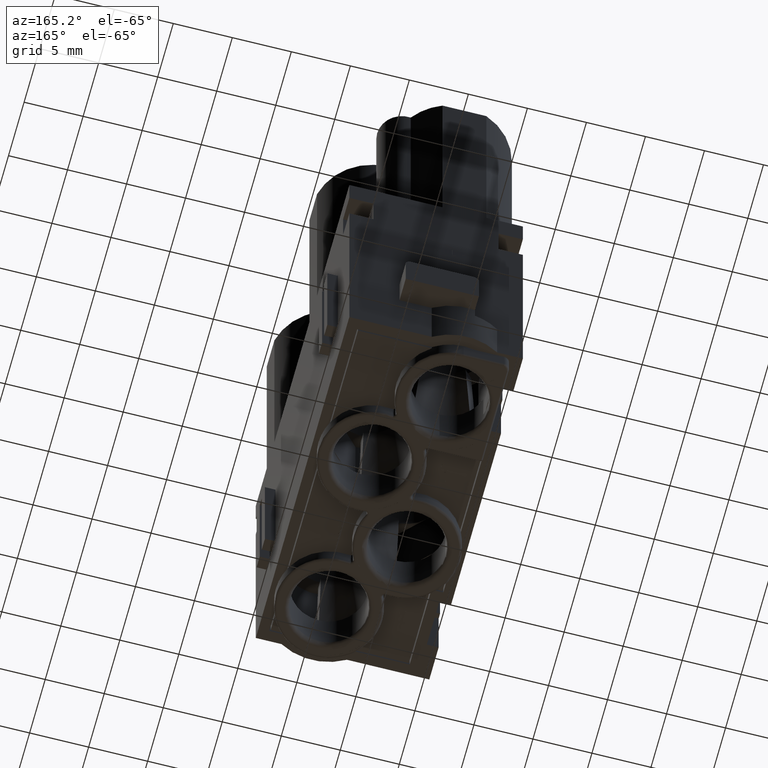
[diagram: clean part render]
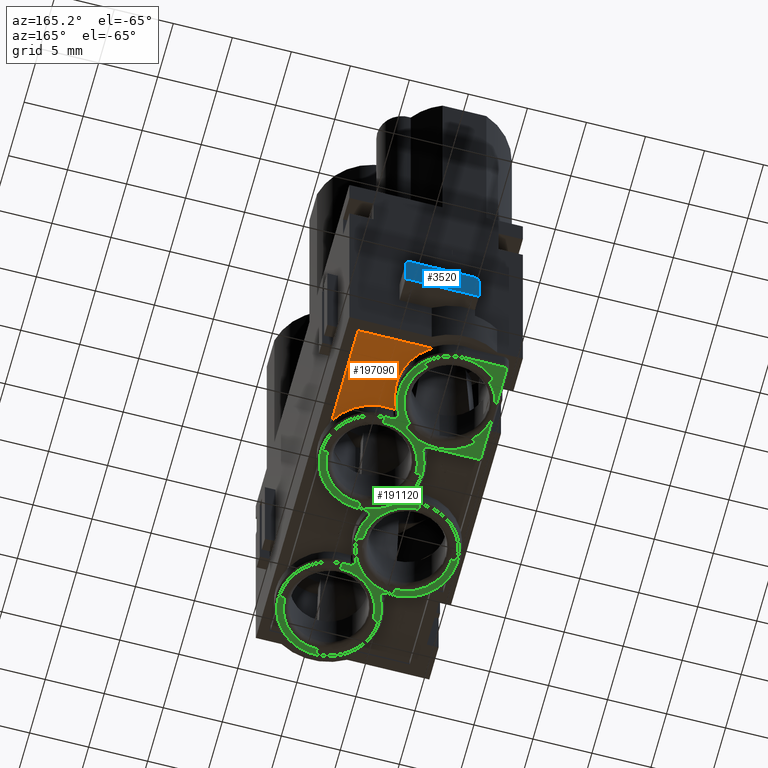
[diagram: same view with three faces highlighted in distinct colors, each labeled with its STEP entity id]
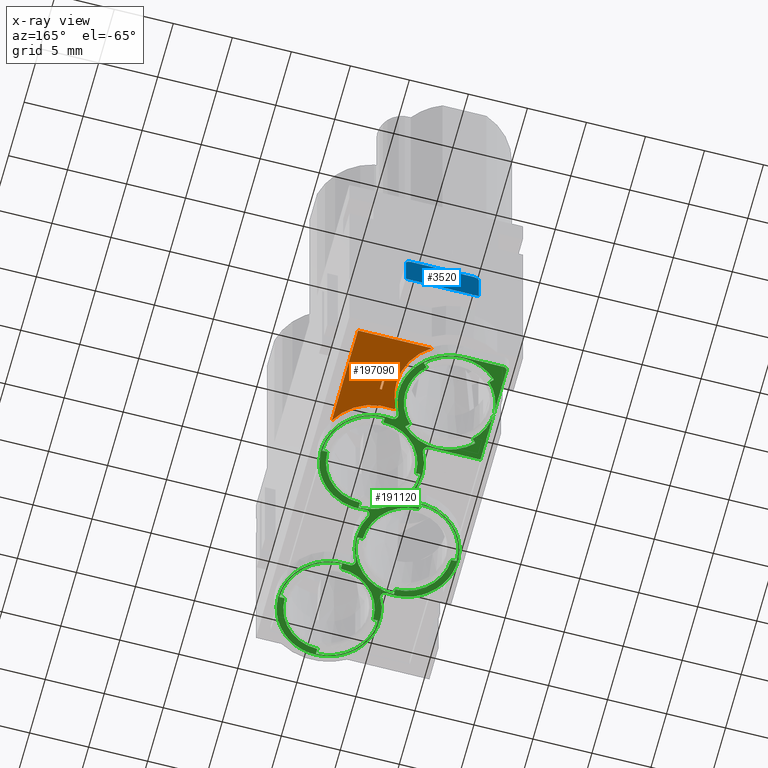
[diagram: x-ray of the same camera — body ghosted, the three highlighted faces saturated]
A machine part, auxiliary view with three faces highlighted in distinct colors.
The next image is the same camera in x-ray (body ghosted, the three faces saturated) — at least one of them is partly hidden behind the body in this view.
Their STEP definitions:

[orange] entity #197090 — the highlighted planar face has unit normal (0, 0, -1).
#170850=CARTESIAN_POINT('',(50.2867064694503,85.5571830001004,
-8.83281218930299));
#170860=CARTESIAN_POINT('',(50.2867064694503,85.2405163334003,
-8.83281218930299));
#170870=CARTESIAN_POINT('',(50.2867064694503,84.9238496667003,
-8.83281218930299));
#170880=CARTESIAN_POINT('',(50.2867064694503,84.2905163333003,
-8.83281218930299));
#170890=CARTESIAN_POINT('',(50.2867064694503,83.9738496666003,
-8.83281218930299));
#170900=CARTESIAN_POINT('',(50.2867064694503,83.6571829999003,
-8.83281218930299));
#170910=CARTESIAN_POINT('',(50.2009856411874,85.5571830001004,
-8.99698346697953));
#170920=CARTESIAN_POINT('',(50.2009856411874,85.2405163334004,
-8.99698346697953));
#170930=CARTESIAN_POINT('',(50.2009856411874,84.9238496667004,
-8.99698346697953));
#170940=CARTESIAN_POINT('',(50.2009856411874,84.2905163333004,
-8.99698346697953));
#170950=CARTESIAN_POINT('',(50.2009856411874,83.9738496666004,
-8.99698346697953));
#170960=CARTESIAN_POINT('',(50.2009856411874,83.6571829999004,
-8.99698346697953));
#170970=CARTESIAN_POINT('',(50.3074498237008,85.5571830001005,
-9.14852767390861));
#170980=CARTESIAN_POINT('',(50.3074498237008,85.2405163334004,
-9.14852767390861));
#170990=CARTESIAN_POINT('',(50.3074498237009,84.9238496667004,
-9.14852767390861));
#171000=CARTESIAN_POINT('',(50.3074498237009,84.2905163333004,
-9.14852767390861));
#171010=CARTESIAN_POINT('',(50.3074498237009,83.9738496666004,
-9.14852767390861));
#171020=CARTESIAN_POINT('',(50.3074498237009,83.6571829999004,
-9.14852767390861));
#171030=CARTESIAN_POINT('',(50.4909617885992,85.5571830001004,
-9.12355513797085));
#171040=CARTESIAN_POINT('',(50.4909617885992,85.2405163334003,
-9.12355513797085));
#171050=CARTESIAN_POINT('',(50.4909617885992,84.9238496667003,
-9.12355513797085));
#171060=CARTESIAN_POINT('',(50.4909617885992,84.2905163333003,
-9.12355513797085));
#171070=CARTESIAN_POINT('',(50.4909617885992,83.9738496666003,
-9.12355513797085));
#171080=CARTESIAN_POINT('',(50.4909617885992,83.6571829999003,
-9.12355513797084));
#171090=(BOUNDED_SURFACE() B_SPLINE_SURFACE(3,3,((#170850,#170910,
#170970,#171030),(#170860,#170920,#170980,#171040),(#170870,#170930,
#170990,#171050),(#170880,#170940,#171000,#171060),(#170890,#170950,
#171010,#171070),(#170900,#170960,#171020,#171080)),.UNSPECIFIED.,.F.,
.F.,.F.) B_SPLINE_SURFACE_WITH_KNOTS((4,2,4),(4,4),(20.9457180200715,
21.8957180201716,22.8457180202716),(0.,1.),.UNSPECIFIED.) 
GEOMETRIC_REPRESENTATION_ITEM() RATIONAL_B_SPLINE_SURFACE(((1.,
0.63951185061118,0.63951185061118,1.),(1.,0.63951185061118,
0.63951185061118,1.),(1.,0.63951185061118,0.63951185061118,1.),(1.,
0.639511850611179,0.639511850611179,1.),(1.,0.639511850611179,
0.639511850611179,1.),(1.,0.639511850611178,0.639511850611178,1.))) 
REPRESENTATION_ITEM('') SURFACE());
#171170=CARTESIAN_POINT('',(50.4909617885992,83.8571830000003,
-9.12355513797085));
#171180=VERTEX_POINT('',#171170);
#171210=CARTESIAN_POINT('',(41.7977349999998,83.8571830000002,
-18.0986136060356));
#171220=DIRECTION('',(4.24227485744583E-30,1.,-1.24773551709422E-14));
#171230=DIRECTION('',(-1.,-1.86986637132178E-30,-4.89858719658941E-16));
#171240=AXIS2_PLACEMENT_3D('',#171210,#171220,#171230);
#171250=PLANE('',#171240);
#171260=CARTESIAN_POINT('',(50.4909617885992,83.8571830000003,
-9.12355513797084));
#171270=CARTESIAN_POINT('',(50.4549190172315,83.8571830000003,
-9.12845988303079));
#171280=CARTESIAN_POINT('',(50.4177752423125,83.8571830000003,
-9.12340940984982));
#171290=CARTESIAN_POINT('',(50.3840787332703,83.8571830000003,
-9.1087215656912));
#171300=CARTESIAN_POINT('',(50.3506151532545,83.8571830000003,
-9.09413525208686));
#171310=CARTESIAN_POINT('',(50.3214287196868,83.8571830000003,
-9.07031921770652));
#171320=CARTESIAN_POINT('',(50.3004280527936,83.8571830000003,
-9.04047354567475));
#171330=CARTESIAN_POINT('',(50.2792866589153,83.8571830000003,
-9.01042787563989));
#171340=CARTESIAN_POINT('',(50.2668348812502,83.8571830000003,
-8.97512618024976));
#171350=CARTESIAN_POINT('',(50.2644256874446,83.8571830000003,
-8.93851373995264));
#171360=CARTESIAN_POINT('',(50.2620249731297,83.8571830000003,
-8.90203016220225));
#171370=CARTESIAN_POINT('',(50.2697601357803,83.8571830000003,
-8.86526755991614));
#171380=CARTESIAN_POINT('',(50.2867064694503,83.8571830000003,
-8.83281218930299));
#171390=B_SPLINE_CURVE_WITH_KNOTS('',3,(#171260,#171270,#171280,#171290,
#171300,#171310,#171320,#171330,#171340,#171350,#171360,#171370,#171380)
,.UNSPECIFIED.,.F.,.F.,(4,3,3,3,4),(0.,0.109261118183137,
0.21857614867983,0.328067783579659,0.4374502417043),.UNSPECIFIED.);
#171400=SURFACE_CURVE('',#171390,(#171090,#171250),.CURVE_3D.);
#171410=CARTESIAN_POINT('',(50.2867064694503,83.8571830000004,
-8.83281218930299));
#171420=VERTEX_POINT('',#171410);
#171430=EDGE_CURVE('',#171180,#171420,#171400,.T.);
#171740=CARTESIAN_POINT('',(48.7852035927664,83.8571830000004,
-2.99999999999934));
#171750=VERTEX_POINT('',#171740);
#171780=CARTESIAN_POINT('',(54.497735,83.8571830000004,-2.99999999999934
));
#171790=DIRECTION('',(1.,1.86986637132178E-30,4.89858719658941E-16));
#171800=VECTOR('',#171790,1.);
#171810=LINE('',#171780,#171800);
#171820=CARTESIAN_POINT('',(55.0477349999999,83.8571830000004,
-2.99999999999934));
#171830=VERTEX_POINT('',#171820);
#171840=EDGE_CURVE('',#171750,#171830,#171810,.T.);
#172090=CARTESIAN_POINT('',(55.0477349999999,83.8571830000001,
-27.3499999999997));
#172100=DIRECTION('',(-4.89858719658941E-16,1.24773551709422E-14,1.));
#172110=VECTOR('',#172100,1.);
#172120=LINE('',#172090,#172110);
#172130=CARTESIAN_POINT('',(55.0477349999999,83.8571830000003,
-11.426653179963));
#172140=VERTEX_POINT('',#172130);
#172150=EDGE_CURVE('',#172140,#171830,#172120,.T.);
#178950=CARTESIAN_POINT('',(51.097735,83.8571830000003,-13.5824592936941
));
#178960=DIRECTION('',(6.09706637945924E-15,-1.,2.40665319221841E-15));
#178970=DIRECTION('',(1.,6.09706637945924E-15,-4.89858719658955E-16));
#178980=AXIS2_PLACEMENT_3D('',#178950,#178960,#178970);
#178990=CIRCLE('',#178980,4.5);
#195850=ORIENTED_EDGE('',*,*,#171840,.T.);
#195860=CARTESIAN_POINT('',(46.297735,83.8571830000003,-6.74999999999944
));
#195870=DIRECTION('',(6.09706637945924E-15,-1.,2.40665319221841E-15));
#195880=DIRECTION('',(1.,6.09706637945924E-15,-4.89858719658955E-16));
#195890=AXIS2_PLACEMENT_3D('',#195860,#195870,#195880);
#195900=CIRCLE('',#195890,4.5);
#195910=CARTESIAN_POINT('',(50.797735,83.8571830000004,-6.74999999999944
));
#195920=VERTEX_POINT('',#195910);
#195930=EDGE_CURVE('',#195920,#171750,#195900,.T.);
#195940=ORIENTED_EDGE('',*,*,#195930,.T.);
#195950=EDGE_CURVE('',#171420,#195920,#195900,.T.);
#195960=ORIENTED_EDGE('',*,*,#195950,.T.);
#195970=ORIENTED_EDGE('',*,*,#171430,.T.);
#195980=EDGE_CURVE('',#172140,#171180,#178990,.T.);
#195990=ORIENTED_EDGE('',*,*,#195980,.T.);
#196000=ORIENTED_EDGE('',*,*,#172150,.F.);
#196010=EDGE_LOOP('',(#196000,#195990,#195970,#195960,#195940,#195850));
#196020=FACE_OUTER_BOUND('',#196010,.T.);
#196030=CARTESIAN_POINT('',(27.154278547698,83.8571830000004,
-6.164999999999));
#196040=DIRECTION('',(1.,7.878446179487E-30,9.79717439317852E-16));
#196050=VECTOR('',#196040,1.);
#196060=LINE('',#196030,#196050);
#196070=CARTESIAN_POINT('',(52.2837349999995,83.8571830000004,
-6.16499999999898));
#196080=VERTEX_POINT('',#196070);
#196090=CARTESIAN_POINT('',(52.3197349999995,83.8571830000004,
-6.16499999999898));
#196100=VERTEX_POINT('',#196090);
#196110=EDGE_CURVE('',#196080,#196100,#196060,.T.);
#196120=ORIENTED_EDGE('',*,*,#196110,.F.);
#196130=CARTESIAN_POINT('',(52.3197349999995,83.8571830000004,
-4.55868960884607));
#196140=DIRECTION('',(9.79717439317852E-16,-1.24773551709422E-14,-1.));
#196150=VECTOR('',#196140,1.);
#196160=LINE('',#196130,#196150);
#196170=CARTESIAN_POINT('',(52.3197349999995,83.8571830000004,
-6.34499999999897));
#196180=VERTEX_POINT('',#196170);
#196190=EDGE_CURVE('',#196100,#196180,#196160,.T.);
#196200=ORIENTED_EDGE('',*,*,#196190,.F.);
#196210=CARTESIAN_POINT('',(27.154278547698,83.8571830000004,
-6.34499999999899));
#196220=DIRECTION('',(-1.,-7.878446179487E-30,-9.79717439317852E-16));
#196230=VECTOR('',#196220,1.);
#196240=LINE('',#196210,#196230);
#196250=CARTESIAN_POINT('',(51.9777349999995,83.8571830000004,
-6.34499999999897));
#196260=VERTEX_POINT('',#196250);
#196270=EDGE_CURVE('',#196180,#196260,#196240,.T.);
#196280=ORIENTED_EDGE('',*,*,#196270,.F.);
#196290=CARTESIAN_POINT('',(51.9777349999995,83.8571830000004,
-4.55868960884607));
#196300=DIRECTION('',(9.79717439317852E-16,-1.24773551709422E-14,-1.));
#196310=VECTOR('',#196300,1.);
#196320=LINE('',#196290,#196310);
#196330=CARTESIAN_POINT('',(51.9777349999995,83.8571830000003,
-7.64999999999897));
#196340=VERTEX_POINT('',#196330);
#196350=EDGE_CURVE('',#196260,#196340,#196320,.T.);
#196360=ORIENTED_EDGE('',*,*,#196350,.F.);
#196370=CARTESIAN_POINT('',(27.154278547698,83.8571830000003,
-7.649999999999));
#196380=DIRECTION('',(-1.,-7.878446179487E-30,-9.79717439317852E-16));
#196390=VECTOR('',#196380,1.);
#196400=LINE('',#196370,#196390);
#196410=CARTESIAN_POINT('',(51.7977349999995,83.8571830000003,
-7.64999999999897));
#196420=VERTEX_POINT('',#196410);
#196430=EDGE_CURVE('',#196340,#196420,#196400,.T.);
#196440=ORIENTED_EDGE('',*,*,#196430,.F.);
#196450=CARTESIAN_POINT('',(51.7977349999995,83.8571830000004,
-4.55868960884607));
#196460=DIRECTION('',(-9.79717439317852E-16,1.24773551709422E-14,1.));
#196470=VECTOR('',#196460,1.);
#196480=LINE('',#196450,#196470);
#196490=CARTESIAN_POINT('',(51.7977349999995,83.8571830000004,
-5.84999999999897));
#196500=VERTEX_POINT('',#196490);
#196510=EDGE_CURVE('',#196420,#196500,#196480,.T.);
#196520=ORIENTED_EDGE('',*,*,#196510,.F.);
#196530=CARTESIAN_POINT('',(27.154278547698,83.8571830000004,
-5.84999999999899));
#196540=DIRECTION('',(1.,7.878446179487E-30,9.79717439317852E-16));
#196550=VECTOR('',#196540,1.);
#196560=LINE('',#196530,#196550);
#196570=CARTESIAN_POINT('',(51.9417349999995,83.8571830000004,
-5.84999999999897));
#196580=VERTEX_POINT('',#196570);
#196590=EDGE_CURVE('',#196500,#196580,#196560,.T.);
#196600=ORIENTED_EDGE('',*,*,#196590,.F.);
#196610=CARTESIAN_POINT('',(51.5973855623587,83.8571830000004,
-4.55868960884607));
#196620=DIRECTION('',(0.257662650560346,-1.2063546279739E-14,
-0.966234939601243));
#196630=VECTOR('',#196620,1.);
#196640=LINE('',#196610,#196630);
#196650=CARTESIAN_POINT('',(51.9597349999995,83.8571830000004,
-5.91749999999897));
#196660=VERTEX_POINT('',#196650);
#196670=EDGE_CURVE('',#196580,#196660,#196640,.T.);
#196680=ORIENTED_EDGE('',*,*,#196670,.F.);
#196690=CARTESIAN_POINT('',(51.1444487653077,83.8571830000004,
-4.55868960884607));
#196700=DIRECTION('',(0.514495755427524,-1.06739624999061E-14,
-0.857492925712546));
#196710=VECTOR('',#196700,1.);
#196720=LINE('',#196690,#196710);
#196730=CARTESIAN_POINT('',(52.0137349999995,83.8571830000004,
-6.00749999999897));
#196740=VERTEX_POINT('',#196730);
#196750=EDGE_CURVE('',#196660,#196740,#196720,.T.);
#196760=ORIENTED_EDGE('',*,*,#196750,.F.);
#196770=CARTESIAN_POINT('',(50.8546866870773,83.8571830000004,
-4.55868960884607));
#196780=DIRECTION('',(0.624695047554372,-9.71102433917147E-15,
-0.780868809443072));
#196790=VECTOR('',#196780,1.);
#196800=LINE('',#196770,#196790);
#196810=CARTESIAN_POINT('',(52.0677349999995,83.8571830000004,
-6.07499999999898));
#196820=VERTEX_POINT('',#196810);
#196830=EDGE_CURVE('',#196740,#196820,#196800,.T.);
#196840=ORIENTED_EDGE('',*,*,#196830,.F.);
#196850=CARTESIAN_POINT('',(27.154278547698,83.8571830000006,
9.49591028268935));
#196860=DIRECTION('',(0.847998304005089,-6.60249644512909E-15,
-0.529998940003178));
#196870=VECTOR('',#196860,1.);
#196880=LINE('',#196850,#196870);
#196890=CARTESIAN_POINT('',(52.1397349999995,83.8571830000004,
-6.11999999999898));
#196900=VERTEX_POINT('',#196890);
#196910=EDGE_CURVE('',#196820,#196900,#196880,.T.);
#196920=ORIENTED_EDGE('',*,*,#196910,.F.);
#196930=CARTESIAN_POINT('',(27.154278547698,83.8571830000005,
4.29060685512201));
#196940=DIRECTION('',(0.923076923076984,-4.75901369594131E-15,
-0.384615384615239));
#196950=VECTOR('',#196940,1.);
#196960=LINE('',#196930,#196950);
#196970=CARTESIAN_POINT('',(52.1937349999995,83.8571830000004,
-6.14249999999897));
#196980=VERTEX_POINT('',#196970);
#196990=EDGE_CURVE('',#196900,#196980,#196960,.T.);
#197000=ORIENTED_EDGE('',*,*,#196990,.F.);
#197010=CARTESIAN_POINT('',(27.154278547698,83.8571830000004,
0.117364113079086));
#197020=DIRECTION('',(0.970142500145307,-3.01230866639064E-15,
-0.242535625036431));
#197030=VECTOR('',#197020,1.);
#197040=LINE('',#197010,#197030);
#197050=EDGE_CURVE('',#196980,#196080,#197040,.T.);
#197060=ORIENTED_EDGE('',*,*,#197050,.F.);
#197070=EDGE_LOOP('',(#197060,#197000,#196920,#196840,#196760,#196680,
#196600,#196520,#196440,#196360,#196280,#196200,#196120));
#197080=FACE_BOUND('',#197070,.T.);
#197090=ADVANCED_FACE('',(#196020,#197080),#171250,.T.);

[blue] entity #3520 — the highlighted planar face has unit normal (-0, -1, -0).
#2950=CARTESIAN_POINT('',(17.8573689999998,41.6571806,
-1.15463194561016E-14));
#2960=DIRECTION('',(1.22464679914735E-16,1.14423774522197E-17,-1.));
#2970=DIRECTION('',(1.,1.10555925536877E-32,1.22464679914735E-16));
#2980=AXIS2_PLACEMENT_3D('',#2950,#2960,#2970);
#2990=PLANE('',#2980);
#3000=CARTESIAN_POINT('',(51.797735,79.057183,-6.21724893790088E-15));
#3010=DIRECTION('',(0.,1.,1.14423774522197E-17));
#3020=VECTOR('',#3010,1.);
#3030=LINE('',#3000,#3020);
#3040=CARTESIAN_POINT('',(51.797735,75.257183,-7.105427357601E-15));
#3050=VERTEX_POINT('',#3040);
#3060=CARTESIAN_POINT('',(51.7977350000002,78.2571830000004,
-7.105427357601E-15));
#3070=VERTEX_POINT('',#3060);
#3080=EDGE_CURVE('',#3050,#3070,#3030,.T.);
#3090=ORIENTED_EDGE('',*,*,#3080,.T.);
#3100=CARTESIAN_POINT('',(51.297735,75.257183,-7.105427357601E-15));
#3110=DIRECTION('',(1.22464679914735E-16,1.22464679914735E-16,-1.));
#3120=DIRECTION('',(1.,-1.35963107344689E-32,1.22464679914735E-16));
#3130=AXIS2_PLACEMENT_3D('',#3100,#3110,#3120);
#3140=CIRCLE('',#3130,0.5);
#3150=CARTESIAN_POINT('',(51.297735,74.757183,-7.105427357601E-15));
#3160=VERTEX_POINT('',#3150);
#3170=EDGE_CURVE('',#3050,#3160,#3140,.T.);
#3180=ORIENTED_EDGE('',*,*,#3170,.F.);
#3190=CARTESIAN_POINT('',(42.041917253491,74.757183,
-8.88178419700125E-15));
#3200=DIRECTION('',(-1.,-1.10555925536877E-32,-1.22464679914735E-16));
#3210=VECTOR('',#3200,1.);
#3220=LINE('',#3190,#3210);
#3230=CARTESIAN_POINT('',(46.097735,74.757183,-7.99360577730113E-15));
#3240=VERTEX_POINT('',#3230);
#3250=EDGE_CURVE('',#3160,#3240,#3220,.T.);
#3260=ORIENTED_EDGE('',*,*,#3250,.F.);
#3270=CARTESIAN_POINT('',(46.097735,75.257183,-7.99360577730113E-15));
#3280=DIRECTION('',(-1.22464679914735E-16,-1.22464679914735E-16,1.));
#3290=DIRECTION('',(-1.,1.35963107344689E-32,-1.22464679914735E-16));
#3300=AXIS2_PLACEMENT_3D('',#3270,#3280,#3290);
#3310=CIRCLE('',#3300,0.5);
#3320=CARTESIAN_POINT('',(45.597735,75.257183,-7.99360577730113E-15));
#3330=VERTEX_POINT('',#3320);
#3340=EDGE_CURVE('',#3330,#3240,#3310,.T.);
#3350=ORIENTED_EDGE('',*,*,#3340,.T.);
#3360=CARTESIAN_POINT('',(45.597735,79.057183,-7.99360577730113E-15));
#3370=DIRECTION('',(0.,-1.,-1.14423774522197E-17));
#3380=VECTOR('',#3370,1.);
#3390=LINE('',#3360,#3380);
#3400=CARTESIAN_POINT('',(45.5977350000002,78.2571830000004,
-7.105427357601E-15));
#3410=VERTEX_POINT('',#3400);
#3420=EDGE_CURVE('',#3410,#3330,#3390,.T.);
#3430=ORIENTED_EDGE('',*,*,#3420,.T.);
#3440=CARTESIAN_POINT('',(27.154278547698,78.2571830000004,
-9.76996261670138E-15));
#3450=DIRECTION('',(-1.,2.71297972078762E-30,-1.22464679914735E-16));
#3460=VECTOR('',#3450,1.);
#3470=LINE('',#3440,#3460);
#3480=EDGE_CURVE('',#3070,#3410,#3470,.T.);
#3490=ORIENTED_EDGE('',*,*,#3480,.T.);
#3500=EDGE_LOOP('',(#3490,#3430,#3350,#3260,#3180,#3090));
#3510=FACE_OUTER_BOUND('',#3500,.T.);
#3520=ADVANCED_FACE('',(#3510),#2990,.F.);

[green] entity #191120 — the highlighted planar face has unit normal (-0, 0, -1).
#140070=CARTESIAN_POINT('',(42.547735,85.3571830000003,-6.7499999999996)
);
#140080=VERTEX_POINT('',#140070);
#140110=CARTESIAN_POINT('',(46.2977349999999,85.3571830000003,
-6.7499999999996));
#140120=DIRECTION('',(4.24227485744583E-30,1.,-1.24773551709422E-14));
#140130=DIRECTION('',(1.,1.86986637132178E-30,4.89858719658941E-16));
#140140=AXIS2_PLACEMENT_3D('',#140110,#140120,#140130);
#140150=CIRCLE('',#140140,3.75);
#140160=CARTESIAN_POINT('',(43.6460845705505,85.3571830000003,
-9.40165042944926));
#140170=VERTEX_POINT('',#140160);
#140180=EDGE_CURVE('',#140170,#140080,#140150,.T.);
#140470=CARTESIAN_POINT('',(48.9493854294494,85.3571830000003,
-9.40165042944926));
#140480=VERTEX_POINT('',#140470);
#140510=CARTESIAN_POINT('',(50.0477349999999,85.3571830000003,
-6.7499999999996));
#140520=VERTEX_POINT('',#140510);
#140530=EDGE_CURVE('',#140520,#140480,#140150,.T.);
#140840=CARTESIAN_POINT('',(42.547735,85.3571830000001,-27.3499999999997
));
#140850=DIRECTION('',(-4.89858719658941E-16,1.24773551709422E-14,1.));
#140860=VECTOR('',#140850,1.);
#140870=LINE('',#140840,#140860);
#140880=CARTESIAN_POINT('',(42.547735,85.3571830000003,-11.0499999999994
));
#140890=VERTEX_POINT('',#140880);
#140900=EDGE_CURVE('',#140890,#140080,#140870,.T.);
#140920=CARTESIAN_POINT('',(42.547734979836,85.3571830000004,
-2.74999999999959));
#140930=VERTEX_POINT('',#140920);
#140940=EDGE_CURVE('',#140080,#140930,#140870,.T.);
#159540=CARTESIAN_POINT('',(46.8802039889638,85.3571830000002,
-16.1571581778081));
#159550=VERTEX_POINT('',#159540);
#159580=CARTESIAN_POINT('',(47.2879545569081,85.3571830000002,
-15.5763746007021));
#159590=CARTESIAN_POINT('',(47.2941499575075,85.3571830000002,
-15.5884662938655));
#159600=CARTESIAN_POINT('',(47.2997951664132,85.3571830000002,
-15.6006155283402));
#159610=CARTESIAN_POINT('',(47.3292850792507,85.3571830000002,
-15.6751092898742));
#159620=CARTESIAN_POINT('',(47.3379792695527,85.3571830000002,
-15.7418911715877));
#159630=CARTESIAN_POINT('',(47.3223578849202,85.3571830000002,
-15.8736356681447));
#159640=CARTESIAN_POINT('',(47.2982872549154,85.3571830000002,
-15.9365325157734));
#159650=CARTESIAN_POINT('',(47.2219620225032,85.3571830000002,
-16.0450456436526));
#159660=CARTESIAN_POINT('',(47.1709042075079,85.3571830000002,
-16.0889604270219));
#159670=CARTESIAN_POINT('',(47.0521953514073,85.3571830000002,
-16.1481959528004));
#159680=CARTESIAN_POINT('',(46.9864056773263,85.3571830000002,
-16.1625878760736));
#159690=CARTESIAN_POINT('',(46.9065454092841,85.3571830000002,
-16.1600220378687));
#159700=CARTESIAN_POINT('',(46.8934497630715,85.3571830000002,
-16.1588523095983));
#159710=CARTESIAN_POINT('',(46.8802039889638,85.3571830000002,
-16.1571581778081));
#159720=B_SPLINE_CURVE_WITH_KNOTS('',3,(#159580,#159590,#159600,#159610,
#159620,#159630,#159640,#159650,#159660,#159670,#159680,#159690,#159700,
#159710),.UNSPECIFIED.,.F.,.F.,(4,2,2,2,2,2,4),(0.,0.0282621706008296,
0.164262218044111,0.300262265426578,0.436262312807451,0.572262360252056,
0.600079562136632),.UNSPECIFIED.);
#159730=CARTESIAN_POINT('',(47.2879545569081,85.3571830000002,
-15.5763746007021));
#159740=VERTEX_POINT('',#159730);
#159750=EDGE_CURVE('',#159740,#159550,#159720,.T.);
#160970=CARTESIAN_POINT('',(46.8787824684392,85.3571830000001,
-24.678116560622));
#160980=VERTEX_POINT('',#160970);
#161010=CARTESIAN_POINT('',(46.8802039889638,85.3571830000002,
-16.1571581778081));
#161020=CARTESIAN_POINT('',(46.8706385688663,85.3571830000002,
-16.155853440614));
#161030=CARTESIAN_POINT('',(46.8608386206686,85.3571830000002,
-16.1545595604418));
#161040=CARTESIAN_POINT('',(46.3310150851067,85.3571830000002,
-16.0857568407488));
#161050=CARTESIAN_POINT('',(45.800949637638,85.3571830000002,
-16.1138277383929));
#161060=CARTESIAN_POINT('',(44.5946214783223,85.3571830000002,
-16.4053221400752));
#161070=CARTESIAN_POINT('',(43.954005694851,85.3571830000002,
-16.7425677220361));
#161080=CARTESIAN_POINT('',(42.8932154741143,85.3571830000002,
-17.6958242830193));
#161090=CARTESIAN_POINT('',(42.4896743358203,85.3571830000002,
-18.2968881018348));
#161100=CARTESIAN_POINT('',(42.0829232475429,85.3571830000002,
-19.4330950935309));
#161110=CARTESIAN_POINT('',(41.9978132587824,85.3571830000002,
-19.923127627478));
#161120=CARTESIAN_POINT('',(41.9977350539414,85.3571830000001,
-20.4168596063831));
#161130=CARTESIAN_POINT('',(41.9976221042436,85.3571830000001,
-21.1299468928412));
#161140=CARTESIAN_POINT('',(42.1748555380995,85.3571830000001,
-21.8318809883991));
#161150=CARTESIAN_POINT('',(42.8520896719747,85.3571830000001,
-23.0870016564542));
#161160=CARTESIAN_POINT('',(43.3414712716217,85.3571830000001,
-23.6205078087255));
#161170=CARTESIAN_POINT('',(44.5336100068777,85.3571830000001,
-24.403309954462));
#161180=CARTESIAN_POINT('',(45.2176742853967,85.3571830000001,
-24.6403315303552));
#161190=CARTESIAN_POINT('',(46.2364419432401,85.3571830000001,
-24.7282264645211));
#161200=CARTESIAN_POINT('',(46.5455344552411,85.3571830000001,
-24.7213688768873));
#161210=CARTESIAN_POINT('',(46.8594748588162,85.3571830000001,
-24.6807004602888));
#161220=CARTESIAN_POINT('',(46.8692394542434,85.3571830000001,
-24.6794152033037));
#161230=CARTESIAN_POINT('',(46.8787824684392,85.3571830000001,
-24.678116560622));
#161240=B_SPLINE_CURVE_WITH_KNOTS('',3,(#161010,#161020,#161030,#161040,
#161050,#161060,#161070,#161080,#161090,#161100,#161110,#161120,#161130,
#161140,#161150,#161160,#161170,#161180,#161190,#161200,#161210,#161220,
#161230),.UNSPECIFIED.,.F.,.F.,(4,2,2,2,2,3,2,2,2,2,4),(0.,
0.0290263250945686,1.64575222089407,3.82938025755444,6.01300829421482,
7.52492277117465,9.70855080783289,11.8921788444925,14.0758068811528,
15.0234556595601,15.0524979824529),.UNSPECIFIED.);
#161250=EDGE_CURVE('',#159550,#160980,#161240,.T.);
#161950=CARTESIAN_POINT('',(47.2658027851392,85.3571830000003,
-11.6314857848901));
#161960=VERTEX_POINT('',#161950);
#162030=CARTESIAN_POINT('',(47.2658027851392,85.3571830000003,
-11.6314857848901));
#162040=CARTESIAN_POINT('',(47.2616219288977,85.3571830000003,
-11.6396973978016));
#162050=CARTESIAN_POINT('',(47.2574672359229,85.3571830000003,
-11.6479223058988));
#162060=CARTESIAN_POINT('',(47.1724112498823,85.3571830000003,
-11.8176710108747));
#162070=CARTESIAN_POINT('',(47.1015095645288,85.3571830000003,
-11.9845855498906));
#162080=CARTESIAN_POINT('',(46.877443078419,85.3571830000003,
-12.6217786132401));
#162090=CARTESIAN_POINT('',(46.7950956392386,85.3571830000003,
-13.1122829391883));
#162100=CARTESIAN_POINT('',(46.7977994794362,85.3571830000003,
-13.6060075206686));
#162110=CARTESIAN_POINT('',(46.8015083147116,85.3571830000002,
-14.2832454527631));
#162120=CARTESIAN_POINT('',(46.9651257020681,85.3571830000002,
-14.9495219076758));
#162130=CARTESIAN_POINT('',(47.2789777363588,85.3571830000002,
-15.559118826234));
#162140=CARTESIAN_POINT('',(47.2834964928093,85.3571830000002,
-15.5678507209851));
#162150=CARTESIAN_POINT('',(47.2879545569081,85.3571830000002,
-15.5763746007021));
#162160=B_SPLINE_CURVE_WITH_KNOTS('',3,(#162030,#162040,#162050,#162060,
#162070,#162080,#162090,#162100,#162110,#162120,#162130,#162140,#162150)
,.UNSPECIFIED.,.F.,.F.,(4,2,2,3,2,4),(0.,0.0283825364958524,
0.584815527471122,2.09673000443128,4.17061060970803,4.19945914386529),
.UNSPECIFIED.);
#162170=EDGE_CURVE('',#161960,#159740,#162160,.T.);
#162990=CARTESIAN_POINT('',(47.2658027851392,85.3571830000003,
-11.6314857848901));
#163000=CARTESIAN_POINT('',(47.2715090262519,85.3571830000003,
-11.6202779939869));
#163010=CARTESIAN_POINT('',(47.2766838313577,85.3571830000003,
-11.6088074683013));
#163020=CARTESIAN_POINT('',(47.302519045133,85.3571830000003,
-11.5434849407762));
#163030=CARTESIAN_POINT('',(47.3119194374697,85.3571830000003,
-11.485804415556));
#163040=CARTESIAN_POINT('',(47.3050955519563,85.3571830000003,
-11.3617897966235));
#163050=CARTESIAN_POINT('',(47.2850359536648,85.3571830000003,
-11.2975012191953));
#163060=CARTESIAN_POINT('',(47.2503679385858,85.3571830000003,
-11.2409478042854));
#163070=CARTESIAN_POINT('',(47.2263642744976,85.3571830000003,
-11.2017909857759));
#163080=CARTESIAN_POINT('',(47.1957960770287,85.3571830000003,
-11.1670604948852));
#163090=CARTESIAN_POINT('',(47.1083099312762,85.3571830000003,
-11.0967114435846));
#163100=CARTESIAN_POINT('',(47.0470886047522,85.3571830000003,
-11.0686515460437));
#163110=CARTESIAN_POINT('',(46.9703007128482,85.3571830000003,
-11.0544973878477));
#163120=CARTESIAN_POINT('',(46.9586858314685,85.3571830000003,
-11.0528825897956));
#163130=CARTESIAN_POINT('',(46.9345116576449,85.3571830000003,
-11.0505940647638));
#163140=CARTESIAN_POINT('',(46.9219314427189,85.3571830000003,
-11.0499999661446));
#163150=CARTESIAN_POINT('',(46.9093442158521,85.3571830000003,
-11.0500000112415));
#163160=B_SPLINE_CURVE_WITH_KNOTS('',3,(#162990,#163000,#163010,#163020,
#163030,#163040,#163050,#163060,#163070,#163080,#163090,#163100,#163110,
#163120,#163130,#163140,#163150),.UNSPECIFIED.,.F.,.F.,(4,2,2,3,2,2,2,4)
,(0.,0.0283257859892448,0.158209696683709,0.307093426455896,
0.410178504430424,0.559062234202744,0.585429764551908,0.613808833279592)
,.UNSPECIFIED.);
#163170=CARTESIAN_POINT('',(46.9093442158521,85.3571830000003,
-11.0500000112415));
#163180=VERTEX_POINT('',#163170);
#163190=EDGE_CURVE('',#161960,#163180,#163160,.T.);
#163560=CARTESIAN_POINT('',(54.497735,85.3571830000003,-11.0499999999994
));
#163570=DIRECTION('',(1.,6.09706637945924E-15,-4.89858719658956E-16));
#163580=VECTOR('',#163570,1.);
#163590=LINE('',#163560,#163580);
#163600=EDGE_CURVE('',#140890,#163180,#163590,.T.);
#168820=CARTESIAN_POINT('',(42.547734979836,85.3571830000004,
-2.74999999999959));
#168830=CARTESIAN_POINT('',(42.5477349601313,85.3571830000004,
-2.74293882074516));
#168840=CARTESIAN_POINT('',(42.5479842397431,85.3571830000004,
-2.73587984127359));
#168850=CARTESIAN_POINT('',(42.5511009519635,85.3571830000004,
-2.69181150126092));
#168860=CARTESIAN_POINT('',(42.560576373776,85.3571830000004,
-2.6554824001988));
#168870=CARTESIAN_POINT('',(42.5912651196394,85.3571830000004,
-2.59059562066478));
#168880=CARTESIAN_POINT('',(42.6112456701962,85.3571830000004,
-2.56222526109139));
#168890=CARTESIAN_POINT('',(42.635602965644,85.3571830000004,
-2.53786796564357));
#168900=CARTESIAN_POINT('',(42.670781723469,85.3571830000004,
-2.50268920781862));
#168910=CARTESIAN_POINT('',(42.7141578221984,85.3571830000004,
-2.47681100392718));
#168920=CARTESIAN_POINT('',(42.7829791314451,85.3571830000004,
-2.45624130293289));
#168930=CARTESIAN_POINT('',(42.8046843814581,85.3571830000004,
-2.45229740454004));
#168940=CARTESIAN_POINT('',(42.8335959671451,85.3571830000004,
-2.45025003084667));
#168950=CARTESIAN_POINT('',(42.8406643779451,85.3571830000004,
-2.45000003862026));
#168960=CARTESIAN_POINT('',(42.8477350000001,85.3571830000004,
-2.45000001916208));
#168970=B_SPLINE_CURVE_WITH_KNOTS('',3,(#168820,#168830,#168840,#168850,
#168860,#168870,#168880,#168890,#168900,#168910,#168920,#168930,#168940,
#168950,#168960),.UNSPECIFIED.,.F.,.F.,(4,2,2,3,2,2,4),(0.,
0.0283380151809883,0.177297393177622,0.314744163810363,0.513255803506515
,0.601355698257871,0.629782234851218),.UNSPECIFIED.);
#168980=CARTESIAN_POINT('',(42.8477350000001,85.3571830000004,
-2.45000001916208));
#168990=VERTEX_POINT('',#168980);
#169000=EDGE_CURVE('',#140930,#168990,#168970,.T.);
#169350=CARTESIAN_POINT('',(46.2977350000005,85.3571830000004,
-2.44999982501975));
#169360=VERTEX_POINT('',#169350);
#169460=CARTESIAN_POINT('',(54.497735,85.3571830000004,-2.44999999999948
));
#169470=DIRECTION('',(-1.,-6.0970663794593E-15,-4.74939326728413E-15));
#169480=VECTOR('',#169470,1.);
#169490=LINE('',#169460,#169480);
#169500=EDGE_CURVE('',#169360,#168990,#169490,.T.);
#170240=CARTESIAN_POINT('',(50.1088079149667,85.3571830000003,
-8.7414438901));
#170250=VERTEX_POINT('',#170240);
#170300=CARTESIAN_POINT('',(50.5166875315613,85.3571830000003,
-9.32188343937658));
#170310=CARTESIAN_POINT('',(50.5032858152739,85.3571830000003,
-9.32359278313618));
#170320=CARTESIAN_POINT('',(50.490022028931,85.3571830000003,
-9.32476939824184));
#170330=CARTESIAN_POINT('',(50.4100131411609,85.3571830000003,
-9.32723509714128));
#170340=CARTESIAN_POINT('',(50.3442423767412,85.3571830000003,
-9.31275700271599));
#170350=CARTESIAN_POINT('',(50.2256112201557,85.3571830000003,
-9.25336602092504));
#170360=CARTESIAN_POINT('',(50.1746109766811,85.3571830000003,
-9.20938439025968));
#170370=CARTESIAN_POINT('',(50.0984279603452,85.3571830000003,
-9.10077137056645));
#170380=CARTESIAN_POINT('',(50.0744397449264,85.3571830000003,
-9.03784304473872));
#170390=CARTESIAN_POINT('',(50.0589909570313,85.3571830000003,
-8.90607819744051));
#170400=CARTESIAN_POINT('',(50.0677726231548,85.3571830000003,
-8.83930776228));
#170410=CARTESIAN_POINT('',(50.0972539241939,85.3571830000003,
-8.76511987189961));
#170420=CARTESIAN_POINT('',(50.1027600976879,85.3571830000003,
-8.75326637816967));
#170430=CARTESIAN_POINT('',(50.1088079149667,85.3571830000003,
-8.7414438901));
#170440=B_SPLINE_CURVE_WITH_KNOTS('',3,(#170300,#170310,#170320,#170330,
#170340,#170350,#170360,#170370,#170380,#170390,#170400,#170410,#170420,
#170430),.UNSPECIFIED.,.F.,.F.,(4,2,2,2,2,2,4),(0.,0.0281269607730174,
0.164183420166674,0.300239879499573,0.436296338830726,0.572352798225724,
0.600037005845518),.UNSPECIFIED.);
#170450=CARTESIAN_POINT('',(50.5166875315613,85.3571830000003,
-9.32188343937658));
#170460=VERTEX_POINT('',#170450);
#170470=EDGE_CURVE('',#170460,#170250,#170440,.T.);
#174250=CARTESIAN_POINT('',(50.5152660110361,85.3571830000002,
-17.8428418221905));
#174260=VERTEX_POINT('',#174250);
#174290=CARTESIAN_POINT('',(50.1075154198367,85.3571830000002,
-18.4236254114591));
#174300=CARTESIAN_POINT('',(50.1013200190231,85.3571830000002,
-18.4115337178777));
#174310=CARTESIAN_POINT('',(50.0956748336783,85.3571830000002,
-18.3993844718899));
#174320=CARTESIAN_POINT('',(50.0661849207492,85.3571830000002,
-18.3248907101245));
#174330=CARTESIAN_POINT('',(50.0574907304472,85.3571830000002,
-18.258108828411));
#174340=CARTESIAN_POINT('',(50.0731121150797,85.3571830000002,
-18.126364331854));
#174350=CARTESIAN_POINT('',(50.0971827450845,85.3571830000002,
-18.0634674842253));
#174360=CARTESIAN_POINT('',(50.1735079774967,85.3571830000002,
-17.954954356346));
#174370=CARTESIAN_POINT('',(50.224565792492,85.3571830000002,
-17.9110395729768));
#174380=CARTESIAN_POINT('',(50.3432746485925,85.3571830000002,
-17.8518040471983));
#174390=CARTESIAN_POINT('',(50.4090643226735,85.3571830000002,
-17.837412123925));
#174400=CARTESIAN_POINT('',(50.4889245907157,85.3571830000002,
-17.83997796213));
#174410=CARTESIAN_POINT('',(50.5020202369283,85.3571830000002,
-17.8411476904003));
#174420=CARTESIAN_POINT('',(50.5152660110361,85.3571830000002,
-17.8428418221905));
#174430=B_SPLINE_CURVE_WITH_KNOTS('',3,(#174290,#174300,#174310,#174320,
#174330,#174340,#174350,#174360,#174370,#174380,#174390,#174400,#174410,
#174420),.UNSPECIFIED.,.F.,.F.,(4,2,2,2,2,2,4),(0.,0.0282621711110855,
0.164262218554379,0.300262265936924,0.436262313317757,0.572262360762391,
0.600079562647038),.UNSPECIFIED.);
#174440=CARTESIAN_POINT('',(50.1075154198367,85.3571830000002,
-18.4236254114591));
#174450=VERTEX_POINT('',#174440);
#174460=EDGE_CURVE('',#174450,#174260,#174430,.T.);
#176240=CARTESIAN_POINT('',(50.1088082572538,85.3571830000002,
-22.4089847751303));
#176250=VERTEX_POINT('',#176240);
#176490=CARTESIAN_POINT('',(50.1088082572538,85.3571830000002,
-22.4089847751303));
#176500=CARTESIAN_POINT('',(50.1132810466074,85.3571830000002,
-22.4004186215098));
#176510=CARTESIAN_POINT('',(50.117824969224,85.3571830000002,
-22.3916242681706));
#176520=CARTESIAN_POINT('',(50.2080720900322,85.3571830000002,
-22.2160435867869));
#176530=CARTESIAN_POINT('',(50.2832054230062,85.3571830000002,
-22.0428993444408));
#176540=CARTESIAN_POINT('',(50.5130357590801,85.3571830000002,
-21.3998903302455));
#176550=CARTESIAN_POINT('',(50.5979020625975,85.3571830000002,
-20.9098155348919));
#176560=CARTESIAN_POINT('',(50.5977347531136,85.3571830000002,
-20.4160835781409));
#176570=CARTESIAN_POINT('',(50.5975027573779,85.3571830000002,
-19.7314618467206));
#176580=CARTESIAN_POINT('',(50.4338057859266,85.3571830000002,
-19.0572019231263));
#176590=CARTESIAN_POINT('',(50.1164921724803,85.3571830000002,
-18.4408811297108));
#176600=CARTESIAN_POINT('',(50.1119734609111,85.3571830000002,
-18.4321492574012));
#176610=CARTESIAN_POINT('',(50.1075154198367,85.3571830000002,
-18.4236254114591));
#176620=B_SPLINE_CURVE_WITH_KNOTS('',3,(#176490,#176500,#176510,#176520,
#176530,#176540,#176550,#176560,#176570,#176580,#176590,#176600,#176610)
,.UNSPECIFIED.,.F.,.F.,(4,2,2,3,2,4),(0.,0.0290449402386081,
0.608161871742901,2.1200763487031,4.2165367718591,4.24537674631883),
.UNSPECIFIED.);
#176630=EDGE_CURVE('',#176250,#174450,#176620,.T.);
#177750=CARTESIAN_POINT('',(50.5166875070565,85.3571830000002,
-22.9894239656118));
#177760=CARTESIAN_POINT('',(50.5032857939833,85.3571830000002,
-22.9911333089614));
#177770=CARTESIAN_POINT('',(50.4900220272116,85.3571830000002,
-22.9923101046009));
#177780=CARTESIAN_POINT('',(50.4100131411603,85.3571830000002,
-22.9947758034473));
#177790=CARTESIAN_POINT('',(50.3442423767405,85.3571830000002,
-22.980297709022));
#177800=CARTESIAN_POINT('',(50.2256112201551,85.3571830000002,
-22.9209067272311));
#177810=CARTESIAN_POINT('',(50.1746109766805,85.3571830000002,
-22.8769250965657));
#177820=CARTESIAN_POINT('',(50.0984279603446,85.3571830000002,
-22.7683120768725));
#177830=CARTESIAN_POINT('',(50.0744397449258,85.3571830000002,
-22.7053837510448));
#177840=CARTESIAN_POINT('',(50.0589909570307,85.3571830000002,
-22.5736189037466));
#177850=CARTESIAN_POINT('',(50.0677726231543,85.3571830000002,
-22.506848468586));
#177860=CARTESIAN_POINT('',(50.0972539228526,85.3571830000002,
-22.4326605815796));
#177870=CARTESIAN_POINT('',(50.1027604430735,85.3571830000002,
-22.4208072571427));
#177880=CARTESIAN_POINT('',(50.1088082572538,85.3571830000002,
-22.4089847751303));
#177890=B_SPLINE_CURVE_WITH_KNOTS('',3,(#177750,#177760,#177770,#177780,
#177790,#177800,#177810,#177820,#177830,#177840,#177850,#177860,#177870,
#177880),.UNSPECIFIED.,.F.,.F.,(4,2,2,2,2,2,4),(0.,0.0281269572458678,
0.16418341663942,0.30023987597218,0.436296335303225,0.572352794698112,
0.600036994871242),.UNSPECIFIED.);
#177900=CARTESIAN_POINT('',(50.5166875070565,85.3571830000002,
-22.9894239656118));
#177910=VERTEX_POINT('',#177900);
#177920=EDGE_CURVE('',#177910,#176250,#177890,.T.);
#186680=CARTESIAN_POINT('',(51.0977349999995,85.3571830000003,
-9.83245929369427));
#186690=VERTEX_POINT('',#186680);
#186720=CARTESIAN_POINT('',(51.097735,85.3571830000003,-13.5824592936943
));
#186730=DIRECTION('',(4.24227485744583E-30,1.,-1.24773551709422E-14));
#186740=DIRECTION('',(1.,1.86986637132178E-30,4.89858719658941E-16));
#186750=AXIS2_PLACEMENT_3D('',#186720,#186730,#186740);
#186760=CIRCLE('',#186750,3.75);
#186770=CARTESIAN_POINT('',(47.347735,85.3571830000003,-13.5824592936943
));
#186780=VERTEX_POINT('',#186770);
#186790=EDGE_CURVE('',#186780,#186690,#186760,.T.);
#187180=CARTESIAN_POINT('',(53.6988674896233,85.3571830000003,
-10.0477269952377));
#187190=DIRECTION('',(-6.09706637945924E-15,1.,-1.24773551709422E-14));
#187200=DIRECTION('',(-1.,-6.09706637945925E-15,-4.89858719658865E-16));
#187210=AXIS2_PLACEMENT_3D('',#187180,#187190,#187200);
#187220=PLANE('',#187210);
#187230=CARTESIAN_POINT('',(51.0977349999995,85.3571830000003,
-13.582459293694));
#187240=DIRECTION('',(6.09706637945924E-15,-1.,1.24773551709422E-14));
#187250=DIRECTION('',(0.707106781186547,1.31340994349064E-14,
0.707106781186548));
#187260=AXIS2_PLACEMENT_3D('',#187230,#187240,#187250);
#187270=CIRCLE('',#187260,4.19999999999918);
#187280=CARTESIAN_POINT('',(54.0675834809824,85.3571830000003,
-10.612610812711));
#187290=VERTEX_POINT('',#187280);
#187300=CARTESIAN_POINT('',(51.0977349999996,85.3571830000003,
-9.38245929369477));
#187310=VERTEX_POINT('',#187300);
#187320=EDGE_CURVE('',#187290,#187310,#187270,.T.);
#187330=ORIENTED_EDGE('',*,*,#187320,.T.);
#187340=CARTESIAN_POINT('',(55.2977349999987,85.3571830000003,
-13.5824592936939));
#187350=VERTEX_POINT('',#187340);
#187360=EDGE_CURVE('',#187350,#187290,#187270,.T.);
#187370=ORIENTED_EDGE('',*,*,#187360,.T.);
#187380=CARTESIAN_POINT('',(27.154278547698,85.3571830000001,
-13.582459293695));
#187390=DIRECTION('',(-1.,-6.09706637945973E-15,-3.89590865229205E-14));
#187400=VECTOR('',#187390,1.);
#187410=LINE('',#187380,#187400);
#187420=CARTESIAN_POINT('',(54.847735,85.3571830000003,-13.5824592936943
));
#187430=VERTEX_POINT('',#187420);
#187440=EDGE_CURVE('',#187350,#187430,#187410,.T.);
#187450=ORIENTED_EDGE('',*,*,#187440,.F.);
#187460=CARTESIAN_POINT('',(51.0977349999998,85.3571830000002,
-17.3324592936943));
#187470=VERTEX_POINT('',#187460);
#187480=EDGE_CURVE('',#187430,#187470,#186760,.T.);
#187490=ORIENTED_EDGE('',*,*,#187480,.F.);
#187500=CARTESIAN_POINT('',(51.0977350000001,85.3571830000004,
-4.55868960884607));
#187510=DIRECTION('',(-4.10324824013219E-14,-1.24773551709425E-14,-1.));
#187520=VECTOR('',#187510,1.);
#187530=LINE('',#187500,#187520);
#187540=CARTESIAN_POINT('',(51.0977349999995,85.3571830000002,
-17.7824592936931));
#187550=VERTEX_POINT('',#187540);
#187560=EDGE_CURVE('',#187470,#187550,#187530,.T.);
#187570=ORIENTED_EDGE('',*,*,#187560,.F.);
#187580=CARTESIAN_POINT('',(51.0977349999995,85.3571830000003,
-13.582459293694));
#187590=DIRECTION('',(6.09706637945924E-15,-1.,1.24773551709422E-14));
#187600=DIRECTION('',(0.707106781186547,1.31340994349064E-14,
0.707106781186548));
#187610=AXIS2_PLACEMENT_3D('',#187580,#187590,#187600);
#187620=CIRCLE('',#187610,4.19999999999918);
#187630=CARTESIAN_POINT('',(48.1278865190166,85.3571830000002,
-16.5523077746769));
#187640=VERTEX_POINT('',#187630);
#187650=EDGE_CURVE('',#187640,#187550,#187620,.T.);
#187660=ORIENTED_EDGE('',*,*,#187650,.T.);
#187670=CARTESIAN_POINT('',(46.8977350000004,85.3571830000003,
-13.582459293694));
#187680=VERTEX_POINT('',#187670);
#187690=EDGE_CURVE('',#187680,#187640,#187620,.T.);
#187700=ORIENTED_EDGE('',*,*,#187690,.T.);
#187710=CARTESIAN_POINT('',(27.154278547698,85.3571830000001,
-13.5824592936948));
#187720=DIRECTION('',(1.,6.09706637945975E-15,4.06799322110895E-14));
#187730=VECTOR('',#187720,1.);
#187740=LINE('',#187710,#187730);
#187750=EDGE_CURVE('',#187680,#186780,#187740,.T.);
#187760=ORIENTED_EDGE('',*,*,#187750,.F.);
#187770=ORIENTED_EDGE('',*,*,#186790,.F.);
#187780=CARTESIAN_POINT('',(51.097734999999,85.3571830000004,
-4.55868960884607));
#187790=DIRECTION('',(-1.16841231700375E-13,1.24773551709415E-14,1.));
#187800=VECTOR('',#187790,1.);
#187810=LINE('',#187780,#187800);
#187820=EDGE_CURVE('',#186690,#187310,#187810,.T.);
#187830=ORIENTED_EDGE('',*,*,#187820,.F.);
#187840=EDGE_LOOP('',(#187830,#187770,#187760,#187700,#187660,#187570,
#187490,#187450,#187370,#187330));
#187850=FACE_BOUND('',#187840,.T.);
#187860=ORIENTED_EDGE('',*,*,#169500,.F.);
#187870=ORIENTED_EDGE('',*,*,#169000,.T.);
#187880=ORIENTED_EDGE('',*,*,#140940,.T.);
#187890=CARTESIAN_POINT('',(43.6460845705501,85.3571830000004,
-4.09834957055035));
#187900=VERTEX_POINT('',#187890);
#187910=EDGE_CURVE('',#140080,#187900,#140150,.T.);
#187920=ORIENTED_EDGE('',*,*,#187910,.F.);
#187930=CARTESIAN_POINT('',(27.154278547698,85.3571830000005,
12.3934564522978));
#187940=DIRECTION('',(-0.70710678118663,4.47340977802896E-15,
0.707106781186465));
#187950=VECTOR('',#187940,1.);
#187960=LINE('',#187930,#187950);
#187970=CARTESIAN_POINT('',(43.3278865190168,85.3571830000004,
-3.78015151901714));
#187980=VERTEX_POINT('',#187970);
#187990=EDGE_CURVE('',#187900,#187980,#187960,.T.);
#188000=ORIENTED_EDGE('',*,*,#187990,.F.);
#188010=CARTESIAN_POINT('',(46.2977349999997,85.3571830000003,
-6.75000000000008));
#188020=DIRECTION('',(6.09706637945924E-15,-1.,1.24773551709422E-14));
#188030=DIRECTION('',(2.31786246347411E-16,1.24773551709422E-14,1.));
#188040=AXIS2_PLACEMENT_3D('',#188010,#188020,#188030);
#188050=CIRCLE('',#188040,4.19999999999918);
#188060=CARTESIAN_POINT('',(46.2977349999997,85.3571830000004,
-2.5500000000009));
#188070=VERTEX_POINT('',#188060);
#188080=EDGE_CURVE('',#188070,#187980,#188050,.T.);
#188090=ORIENTED_EDGE('',*,*,#188080,.T.);
#188100=CARTESIAN_POINT('',(49.2675834809826,85.3571830000004,
-3.78015151901715));
#188110=VERTEX_POINT('',#188100);
#188120=EDGE_CURVE('',#188110,#188070,#188050,.T.);
#188130=ORIENTED_EDGE('',*,*,#188120,.T.);
#188140=CARTESIAN_POINT('',(48.4890453911537,85.3571830000004,
-4.55868960884607));
#188150=DIRECTION('',(-0.70710678118652,-1.31331493701052E-14,
-0.707106781186575));
#188160=VECTOR('',#188150,1.);
#188170=LINE('',#188140,#188160);
#188180=CARTESIAN_POINT('',(48.9493854294494,85.3571830000004,
-4.09834957054994));
#188190=VERTEX_POINT('',#188180);
#188200=EDGE_CURVE('',#188110,#188190,#188170,.T.);
#188210=ORIENTED_EDGE('',*,*,#188200,.F.);
#188220=EDGE_CURVE('',#188190,#140520,#140150,.T.);
#188230=ORIENTED_EDGE('',*,*,#188220,.F.);
#188240=ORIENTED_EDGE('',*,*,#140530,.F.);
#188250=CARTESIAN_POINT('',(44.1064246088461,85.3571830000004,
-4.55868960884607));
#188260=DIRECTION('',(0.707106781186519,-4.47340977802895E-15,
-0.707106781186577));
#188270=VECTOR('',#188260,1.);
#188280=LINE('',#188250,#188270);
#188290=CARTESIAN_POINT('',(49.2675834809826,85.3571830000003,
-9.71984848098301));
#188300=VERTEX_POINT('',#188290);
#188310=EDGE_CURVE('',#140480,#188300,#188280,.T.);
#188320=ORIENTED_EDGE('',*,*,#188310,.F.);
#188330=CARTESIAN_POINT('',(46.2977349999997,85.3571830000003,
-6.75000000000008));
#188340=DIRECTION('',(6.09706637945924E-15,-1.,1.24773551709422E-14));
#188350=DIRECTION('',(2.31786246347411E-16,1.24773551709422E-14,1.));
#188360=AXIS2_PLACEMENT_3D('',#188330,#188340,#188350);
#188370=CIRCLE('',#188360,4.19999999999918);
#188380=CARTESIAN_POINT('',(46.2977349999997,85.3571830000003,
-10.9499999999993));
#188390=VERTEX_POINT('',#188380);
#188400=EDGE_CURVE('',#188390,#188300,#188370,.T.);
#188410=ORIENTED_EDGE('',*,*,#188400,.T.);
#188420=CARTESIAN_POINT('',(43.3278865190168,85.3571830000003,
-9.71984848098301));
#188430=VERTEX_POINT('',#188420);
#188440=EDGE_CURVE('',#188430,#188390,#188370,.T.);
#188450=ORIENTED_EDGE('',*,*,#188440,.T.);
#188460=CARTESIAN_POINT('',(48.4890453911533,85.3571830000004,
-4.55868960884607));
#188470=DIRECTION('',(0.707106781186519,1.31331493701052E-14,
0.707106781186576));
#188480=VECTOR('',#188470,1.);
#188490=LINE('',#188460,#188480);
#188500=EDGE_CURVE('',#188430,#140170,#188490,.T.);
#188510=ORIENTED_EDGE('',*,*,#188500,.F.);
#188520=ORIENTED_EDGE('',*,*,#140180,.F.);
#188530=ORIENTED_EDGE('',*,*,#140900,.T.);
#188540=ORIENTED_EDGE('',*,*,#163600,.F.);
#188550=ORIENTED_EDGE('',*,*,#163190,.T.);
#188560=ORIENTED_EDGE('',*,*,#162170,.F.);
#188570=ORIENTED_EDGE('',*,*,#159750,.F.);
#188580=ORIENTED_EDGE('',*,*,#161250,.F.);
#188590=CARTESIAN_POINT('',(46.8787824684392,85.3571830000001,
-24.678116560622));
#188600=CARTESIAN_POINT('',(46.8921841847266,85.3571830000001,
-24.6764072168624));
#188610=CARTESIAN_POINT('',(46.9054479710695,85.3571830000001,
-24.6752306017567));
#188620=CARTESIAN_POINT('',(46.9854568588397,85.3571830000001,
-24.6727649028573));
#188630=CARTESIAN_POINT('',(47.0512276232594,85.3571830000001,
-24.6872429972826));
#188640=CARTESIAN_POINT('',(47.1698587798449,85.3571830000001,
-24.7466339790735));
#188650=CARTESIAN_POINT('',(47.2208590233195,85.3571830000001,
-24.7906156097389));
#188660=CARTESIAN_POINT('',(47.2970420396554,85.3571830000001,
-24.8992286294321));
#188670=CARTESIAN_POINT('',(47.3210302550742,85.3571830000001,
-24.9621569552598));
#188680=CARTESIAN_POINT('',(47.3364790429693,85.3571830000001,
-25.093921802558));
#188690=CARTESIAN_POINT('',(47.3276973768457,85.3571830000001,
-25.1606922377185));
#188700=CARTESIAN_POINT('',(47.2982160767289,85.3571830000001,
-25.2348801257781));
#188710=CARTESIAN_POINT('',(47.2927096647311,85.3571830000001,
-25.2467335030567));
#188720=CARTESIAN_POINT('',(47.2866618495837,85.3571830000001,
-25.2585559869599));
#188730=B_SPLINE_CURVE_WITH_KNOTS('',3,(#188590,#188600,#188610,#188620,
#188630,#188640,#188650,#188660,#188670,#188680,#188690,#188700,#188710,
#188720),.UNSPECIFIED.,.F.,.F.,(4,2,2,2,2,2,4),(0.,0.0281269607730674,
0.164183420166659,0.300239879499466,0.436296338830541,0.572352798225458,
0.600037000723038),.UNSPECIFIED.);
#188740=CARTESIAN_POINT('',(47.2866618495837,85.3571830000001,
-25.2585559869599));
#188750=VERTEX_POINT('',#188740);
#188760=EDGE_CURVE('',#160980,#188750,#188730,.T.);
#188770=ORIENTED_EDGE('',*,*,#188760,.F.);
#188780=CARTESIAN_POINT('',(50.5166875070565,85.3571830000002,
-22.9894239656118));
#188790=CARTESIAN_POINT('',(50.5262307428172,85.3571830000002,
-22.9881252774466));
#188800=CARTESIAN_POINT('',(50.5359955364106,85.3571830000002,
-22.9868397986925));
#188810=CARTESIAN_POINT('',(50.8049646439977,85.3571830000002,
-22.9519967141283));
#188820=CARTESIAN_POINT('',(51.0680429731551,85.3571830000002,
-22.942025542322));
#188830=CARTESIAN_POINT('',(52.0433648810451,85.3571830000002,
-22.9950878247618));
#188840=CARTESIAN_POINT('',(52.7346002451366,85.3571830000002,
-23.2103012909154));
#188850=CARTESIAN_POINT('',(53.9509591462057,85.3571830000002,
-23.9549119188669));
#188860=CARTESIAN_POINT('',(54.45701005142,85.3571830000002,
-24.4726335099913));
#188870=CARTESIAN_POINT('',(55.1736985581195,85.3571830000002,
-25.7056507636553));
#188880=CARTESIAN_POINT('',(55.3730984106432,85.3571830000002,
-26.4016125897622));
#188890=CARTESIAN_POINT('',(55.4180909207323,85.3571830000001,
-27.8270772990775));
#188900=CARTESIAN_POINT('',(55.2629780911455,85.3571830000001,
-28.5342287500991));
#188910=CARTESIAN_POINT('',(54.6254751239969,85.3571830000001,
-29.8099888883466));
#188920=CARTESIAN_POINT('',(54.1530810980472,85.3571830000001,
-30.3585935263418));
#188930=CARTESIAN_POINT('',(53.5695912874252,85.3571830000001,
-30.7685119716036));
#188940=CARTESIAN_POINT('',(53.1655908454871,85.3571830000001,
-31.0523339510616));
#188950=CARTESIAN_POINT('',(52.715725602648,85.3571830000001,
-31.2644585790493));
#188960=CARTESIAN_POINT('',(51.5522442296558,85.3571830000001,
-31.5849642271967));
#188970=CARTESIAN_POINT('',(50.8284452835745,85.3571830000001,
-31.600399583894));
#188980=CARTESIAN_POINT('',(49.4385886580309,85.3571830000001,
-31.2805988273267));
#188990=CARTESIAN_POINT('',(48.7943240723662,85.3571830000001,
-30.950377222578));
#189000=CARTESIAN_POINT('',(47.7231753436979,85.3571830000001,
-30.0087752023271));
#189010=CARTESIAN_POINT('',(47.3130869221279,85.3571830000001,
-29.4121592026432));
#189020=CARTESIAN_POINT('',(46.8177522158221,85.3571830000001,
-28.0747671538418));
#189030=CARTESIAN_POINT('',(46.7402728298566,85.3571830000001,
-27.3549615486018));
#189040=CARTESIAN_POINT('',(46.9073718395252,85.3571830000001,
-26.1713942772911));
#189050=CARTESIAN_POINT('',(47.0543723823517,85.3571830000001,
-25.7103123915961));
#189060=CARTESIAN_POINT('',(47.2776467120929,85.3571830000001,
-25.2759139892037));
#189070=CARTESIAN_POINT('',(47.2821898020585,85.3571830000001,
-25.2671208639952));
#189080=CARTESIAN_POINT('',(47.2866618495837,85.3571830000001,
-25.2585559869599));
#189090=B_SPLINE_CURVE_WITH_KNOTS('',3,(#188780,#188790,#188800,#188810,
#188820,#188830,#188840,#188850,#188860,#188870,#188880,#188890,#188900,
#188910,#188920,#188930,#188940,#188950,#188960,#188970,#188980,#188990,
#189000,#189010,#189020,#189030,#189040,#189050,#189060,#189070,#189080)
,.UNSPECIFIED.,.F.,.F.,(4,2,2,2,2,2,2,3,2,2,2,2,2,2,4),(0.,
0.0290321181007113,0.836468216936016,3.0200962535964,5.20372429025678,
7.38735232691716,9.57098036357674,11.7546084002346,13.2665228771948,
15.4501509138552,17.6337789505156,19.817406987176,22.0010350238363,
23.4776896626862,23.5067510352732),.UNSPECIFIED.);
#189100=EDGE_CURVE('',#177910,#188750,#189090,.T.);
#189110=ORIENTED_EDGE('',*,*,#189100,.T.);
#189120=ORIENTED_EDGE('',*,*,#177920,.F.);
#189130=ORIENTED_EDGE('',*,*,#176630,.F.);
#189140=ORIENTED_EDGE('',*,*,#174460,.F.);
#189150=CARTESIAN_POINT('',(50.5152660110361,85.3571830000002,
-17.8428418221905));
#189160=CARTESIAN_POINT('',(50.5248314311335,85.3571830000002,
-17.8441465593847));
#189170=CARTESIAN_POINT('',(50.5346313793314,85.3571830000002,
-17.8454404395569));
#189180=CARTESIAN_POINT('',(51.064454914893,85.3571830000002,
-17.9142431592498));
#189190=CARTESIAN_POINT('',(51.5945203623615,85.3571830000002,
-17.8861722616058));
#189200=CARTESIAN_POINT('',(52.8008485216771,85.3571830000002,
-17.5946778599237));
#189210=CARTESIAN_POINT('',(53.4414643051484,85.3571830000003,
-17.2574322779629));
#189220=CARTESIAN_POINT('',(54.5022545258852,85.3571830000003,
-16.3041757169797));
#189230=CARTESIAN_POINT('',(54.9057956641794,85.3571830000003,
-15.7031118981643));
#189240=CARTESIAN_POINT('',(55.3125467524569,85.3571830000003,
-14.5669049064682));
#189250=CARTESIAN_POINT('',(55.3976567412174,85.3571830000003,
-14.076872372521));
#189260=CARTESIAN_POINT('',(55.3977349460584,85.3571830000003,
-13.5831403936158));
#189270=CARTESIAN_POINT('',(55.3978478957564,85.3571830000003,
-12.8700531071578));
#189280=CARTESIAN_POINT('',(55.2206144619005,85.3571830000003,
-12.1681190116));
#189290=CARTESIAN_POINT('',(54.5433803280255,85.3571830000003,
-10.9129983435449));
#189300=CARTESIAN_POINT('',(54.0539987283786,85.3571830000003,
-10.3794921912735));
#189310=CARTESIAN_POINT('',(52.8618599931226,85.3571830000004,
-9.59669004553685));
#189320=CARTESIAN_POINT('',(52.1777957146037,85.3571830000003,
-9.35966846964353));
#189330=CARTESIAN_POINT('',(51.1590280567604,85.3571830000003,
-9.27177353547755));
#189340=CARTESIAN_POINT('',(50.8499355447594,85.3571830000003,
-9.27863112311129));
#189350=CARTESIAN_POINT('',(50.5359951411842,85.3571830000003,
-9.3192995397098));
#189360=CARTESIAN_POINT('',(50.5262305457572,85.3571830000003,
-9.32058479669485));
#189370=CARTESIAN_POINT('',(50.5166875315613,85.3571830000003,
-9.32188343937658));
#189380=B_SPLINE_CURVE_WITH_KNOTS('',3,(#189150,#189160,#189170,#189180,
#189190,#189200,#189210,#189220,#189230,#189240,#189250,#189260,#189270,
#189280,#189290,#189300,#189310,#189320,#189330,#189340,#189350,#189360,
#189370),.UNSPECIFIED.,.F.,.F.,(4,2,2,2,2,3,2,2,2,2,4),(0.,
0.0290263250944093,1.64575222089336,3.82938025755374,6.01300829421412,
7.52492277117418,9.70855080783219,11.8921788444918,14.0758068811522,
15.0234556595594,15.0524979824522),.UNSPECIFIED.);
#189390=EDGE_CURVE('',#174260,#170460,#189380,.T.);
#189400=ORIENTED_EDGE('',*,*,#189390,.F.);
#189410=ORIENTED_EDGE('',*,*,#170470,.F.);
#189420=CARTESIAN_POINT('',(50.1088079149667,85.3571830000003,
-8.7414438901));
#189430=CARTESIAN_POINT('',(50.1132805422121,85.3571830000003,
-8.73287805165283));
#189440=CARTESIAN_POINT('',(50.1178239634311,85.3571830000003,
-8.72408383763687));
#189450=CARTESIAN_POINT('',(50.2403894115679,85.3571830000003,
-8.4856266395357));
#189460=CARTESIAN_POINT('',(50.3380576074413,85.3571830000004,
-8.24454585651993));
#189470=CARTESIAN_POINT('',(50.6199939091026,85.3571830000004,
-7.31264679293362));
#189480=CARTESIAN_POINT('',(50.6535036060053,85.3571830000004,
-6.58945922058588));
#189490=CARTESIAN_POINT('',(50.4123512834814,85.3571830000004,
-5.40697948159023));
#189500=CARTESIAN_POINT('',(50.2311105707952,85.3571830000004,
-4.94380845639712));
#189510=CARTESIAN_POINT('',(49.9752371320368,85.3571830000004,
-4.52155254294237));
#189520=CARTESIAN_POINT('',(49.6056842087574,85.3571830000004,
-3.91169671755296));
#189530=CARTESIAN_POINT('',(49.0902549365999,85.3571830000004,
-3.40331120439762));
#189540=CARTESIAN_POINT('',(47.8604892562555,85.3571830000004,
-2.68105755441594));
#189550=CARTESIAN_POINT('',(47.1654356995034,85.3571830000004,
-2.47851442856212));
#189560=CARTESIAN_POINT('',(46.4103137028824,85.3571830000004,
-2.45126361380151));
#189570=CARTESIAN_POINT('',(46.367832107064,85.3571830000004,
-2.45036168503738));
#189580=CARTESIAN_POINT('',(46.3161658041461,85.3571830000004,
-2.45002933486549));
#189590=CARTESIAN_POINT('',(46.3069504137043,85.3571830000004,
-2.44999985512015));
#189600=CARTESIAN_POINT('',(46.2977350000005,85.3571830000004,
-2.44999982501975));
#189610=B_SPLINE_CURVE_WITH_KNOTS('',3,(#189420,#189430,#189440,#189450,
#189460,#189470,#189480,#189490,#189500,#189510,#189520,#189530,#189540,
#189550,#189560,#189570,#189580,#189590,#189600),.UNSPECIFIED.,.F.,.F.,(
4,2,2,2,3,2,2,2,4),(0.,0.0290760643650572,0.826864930147401,
3.01049296680778,4.52240744376759,6.70603548042584,8.8896635170854,
9.0198881362254,9.04815712025614),.UNSPECIFIED.);
#189620=EDGE_CURVE('',#170250,#169360,#189610,.T.);
#189630=ORIENTED_EDGE('',*,*,#189620,.F.);
#189640=EDGE_LOOP('',(#189630,#189410,#189400,#189140,#189130,#189120,
#189110,#188770,#188580,#188570,#188560,#188550,#188540,#188530,#188520,
#188510,#188450,#188410,#188320,#188240,#188230,#188210,#188130,#188090,
#188000,#187920,#187880,#187870,#187860));
#189650=FACE_OUTER_BOUND('',#189640,.T.);
#189660=CARTESIAN_POINT('',(46.2977350000008,85.3571830000002,
-20.4175407063051));
#189670=DIRECTION('',(6.09706637945924E-15,-1.,1.24773551709422E-14));
#189680=DIRECTION('',(-0.707106781186547,4.51154547038612E-15,
0.707106781186548));
#189690=AXIS2_PLACEMENT_3D('',#189660,#189670,#189680);
#189700=CIRCLE('',#189690,4.19999999999918);
#189710=CARTESIAN_POINT('',(46.2977350000008,85.3571830000002,
-16.2175407063059));
#189720=VERTEX_POINT('',#189710);
#189730=CARTESIAN_POINT('',(43.3278865190179,85.3571830000002,
-17.4476922253221));
#189740=VERTEX_POINT('',#189730);
#189750=EDGE_CURVE('',#189720,#189740,#189700,.T.);
#189760=ORIENTED_EDGE('',*,*,#189750,.T.);
#189770=CARTESIAN_POINT('',(46.2977350000004,85.3571830000004,
-4.55868960884607));
#189780=DIRECTION('',(3.88251794655537E-14,-1.2477355170942E-14,-1.));
#189790=VECTOR('',#189780,1.);
#189800=LINE('',#189770,#189790);
#189810=CARTESIAN_POINT('',(46.2977350000008,85.3571830000002,
-16.6675407063046));
#189820=VERTEX_POINT('',#189810);
#189830=EDGE_CURVE('',#189720,#189820,#189800,.T.);
#189840=ORIENTED_EDGE('',*,*,#189830,.F.);
#189850=CARTESIAN_POINT('',(46.2977349999999,85.3571830000002,
-20.4175407063046));
#189860=DIRECTION('',(6.09706637945924E-15,-1.,1.24773551709422E-14));
#189870=DIRECTION('',(-1.,-6.09706637945924E-15,-1.84921407836012E-29));
#189880=AXIS2_PLACEMENT_3D('',#189850,#189860,#189870);
#189890=CIRCLE('',#189880,3.75);
#189900=CARTESIAN_POINT('',(50.0477349999999,85.3571830000002,
-20.4175407063046));
#189910=VERTEX_POINT('',#189900);
#189920=EDGE_CURVE('',#189910,#189820,#189890,.T.);
#189930=ORIENTED_EDGE('',*,*,#189920,.T.);
#189940=CARTESIAN_POINT('',(27.154278547698,85.3571830000001,
-20.4175407063041));
#189950=DIRECTION('',(1.,6.09706637945873E-15,-4.09998560049952E-14));
#189960=VECTOR('',#189950,1.);
#189970=LINE('',#189940,#189960);
#189980=CARTESIAN_POINT('',(50.497735,85.3571830000002,-20.4175407063051
));
#189990=VERTEX_POINT('',#189980);
#190000=EDGE_CURVE('',#189910,#189990,#189970,.T.);
#190010=ORIENTED_EDGE('',*,*,#190000,.F.);
#190020=CARTESIAN_POINT('',(46.2977350000008,85.3571830000002,
-20.4175407063051));
#190030=DIRECTION('',(6.09706637945924E-15,-1.,1.24773551709422E-14));
#190040=DIRECTION('',(-0.707106781186547,4.51154547038612E-15,
0.707106781186548));
#190050=AXIS2_PLACEMENT_3D('',#190020,#190030,#190040);
#190060=CIRCLE('',#190050,4.19999999999918);
#190070=CARTESIAN_POINT('',(49.2675834809838,85.3571830000002,
-23.387389187288));
#190080=VERTEX_POINT('',#190070);
#190090=EDGE_CURVE('',#190080,#189990,#190060,.T.);
#190100=ORIENTED_EDGE('',*,*,#190090,.T.);
#190110=CARTESIAN_POINT('',(46.2977350000009,85.3571830000001,
-24.6175407063042));
#190120=VERTEX_POINT('',#190110);
#190130=EDGE_CURVE('',#190120,#190080,#190060,.T.);
#190140=ORIENTED_EDGE('',*,*,#190130,.T.);
#190150=CARTESIAN_POINT('',(46.297735,85.3571830000004,-4.55868960884607
));
#190160=DIRECTION('',(-4.06570474561852E-14,1.2477355170942E-14,1.));
#190170=VECTOR('',#190160,1.);
#190180=LINE('',#190150,#190170);
#190190=CARTESIAN_POINT('',(46.2977350000008,85.3571830000001,
-24.1675407063046));
#190200=VERTEX_POINT('',#190190);
#190210=EDGE_CURVE('',#190120,#190200,#190180,.T.);
#190220=ORIENTED_EDGE('',*,*,#190210,.F.);
#190230=CARTESIAN_POINT('',(42.5477349999999,85.3571830000002,
-20.4175407063046));
#190240=VERTEX_POINT('',#190230);
#190250=EDGE_CURVE('',#190240,#190200,#189890,.T.);
#190260=ORIENTED_EDGE('',*,*,#190250,.T.);
#190270=CARTESIAN_POINT('',(27.154278547698,85.3571830000001,
-20.4175407063068));
#190280=DIRECTION('',(-1.,-6.0970663794607E-15,-1.16707324643008E-13));
#190290=VECTOR('',#190280,1.);
#190300=LINE('',#190270,#190290);
#190310=CARTESIAN_POINT('',(42.0977350000017,85.3571830000001,
-20.417540706305));
#190320=VERTEX_POINT('',#190310);
#190330=EDGE_CURVE('',#190240,#190320,#190300,.T.);
#190340=ORIENTED_EDGE('',*,*,#190330,.F.);
#190350=EDGE_CURVE('',#189740,#190320,#189700,.T.);
#190360=ORIENTED_EDGE('',*,*,#190350,.T.);
#190370=EDGE_LOOP('',(#190360,#190340,#190260,#190220,#190140,#190100,
#190010,#189930,#189840,#189760));
#190380=FACE_BOUND('',#190370,.T.);
#190390=CARTESIAN_POINT('',(51.0977350000001,85.3571830000001,
-27.2500000000001));
#190400=DIRECTION('',(4.24227485744583E-30,1.,-1.24773551709422E-14));
#190410=DIRECTION('',(1.,1.86986637132178E-30,4.89858719658941E-16));
#190420=AXIS2_PLACEMENT_3D('',#190390,#190400,#190410);
#190430=CIRCLE('',#190420,3.75);
#190440=CARTESIAN_POINT('',(47.3477350000001,85.3571830000001,
-27.2500000000001));
#190450=VERTEX_POINT('',#190440);
#190460=CARTESIAN_POINT('',(51.0977349999996,85.3571830000002,
-23.5000000000001));
#190470=VERTEX_POINT('',#190460);
#190480=EDGE_CURVE('',#190450,#190470,#190430,.T.);
#190490=ORIENTED_EDGE('',*,*,#190480,.F.);
#190500=CARTESIAN_POINT('',(51.0977349999974,85.3571830000004,
-4.55868960884607));
#190510=DIRECTION('',(-1.16841231700375E-13,1.24773551709415E-14,1.));
#190520=VECTOR('',#190510,1.);
#190530=LINE('',#190500,#190520);
#190540=CARTESIAN_POINT('',(51.0977349999996,85.3571830000002,
-23.0500000000006));
#190550=VERTEX_POINT('',#190540);
#190560=EDGE_CURVE('',#190470,#190550,#190530,.T.);
#190570=ORIENTED_EDGE('',*,*,#190560,.F.);
#190580=CARTESIAN_POINT('',(51.0977349999995,85.3571830000001,
-27.2499999999998));
#190590=DIRECTION('',(6.09706637945924E-15,-1.,1.24773551709422E-14));
#190600=DIRECTION('',(0.707106781186547,1.31340994349064E-14,
0.707106781186548));
#190610=AXIS2_PLACEMENT_3D('',#190580,#190590,#190600);
#190620=CIRCLE('',#190610,4.19999999999918);
#190630=CARTESIAN_POINT('',(54.0675834809825,85.3571830000002,
-24.2801515190169));
#190640=VERTEX_POINT('',#190630);
#190650=EDGE_CURVE('',#190640,#190550,#190620,.T.);
#190660=ORIENTED_EDGE('',*,*,#190650,.T.);
#190670=CARTESIAN_POINT('',(55.2977349999987,85.3571830000001,
-27.2499999999998));
#190680=VERTEX_POINT('',#190670);
#190690=EDGE_CURVE('',#190680,#190640,#190620,.T.);
#190700=ORIENTED_EDGE('',*,*,#190690,.T.);
#190710=CARTESIAN_POINT('',(27.154278547698,85.357183,-27.2500000000009)
);
#190720=DIRECTION('',(-1.,-6.09706637945973E-15,-3.89590865229205E-14));
#190730=VECTOR('',#190720,1.);
#190740=LINE('',#190710,#190730);
#190750=CARTESIAN_POINT('',(54.8477350000001,85.3571830000001,
-27.2500000000001));
#190760=VERTEX_POINT('',#190750);
#190770=EDGE_CURVE('',#190680,#190760,#190740,.T.);
#190780=ORIENTED_EDGE('',*,*,#190770,.F.);
#190790=CARTESIAN_POINT('',(51.0977349999995,85.3571830000001,
-31.0000000000001));
#190800=VERTEX_POINT('',#190790);
#190810=EDGE_CURVE('',#190760,#190800,#190430,.T.);
#190820=ORIENTED_EDGE('',*,*,#190810,.F.);
#190830=CARTESIAN_POINT('',(51.0977350000006,85.3571830000004,
-4.55868960884607));
#190840=DIRECTION('',(-4.10324824013219E-14,-1.24773551709425E-14,-1.));
#190850=VECTOR('',#190840,1.);
#190860=LINE('',#190830,#190850);
#190870=CARTESIAN_POINT('',(51.0977349999995,85.3571830000001,
-31.449999999999));
#190880=VERTEX_POINT('',#190870);
#190890=EDGE_CURVE('',#190800,#190880,#190860,.T.);
#190900=ORIENTED_EDGE('',*,*,#190890,.F.);
#190910=CARTESIAN_POINT('',(51.0977349999995,85.3571830000001,
-27.2499999999998));
#190920=DIRECTION('',(6.09706637945924E-15,-1.,1.24773551709422E-14));
#190930=DIRECTION('',(0.707106781186547,1.31340994349064E-14,
0.707106781186548));
#190940=AXIS2_PLACEMENT_3D('',#190910,#190920,#190930);
#190950=CIRCLE('',#190940,4.19999999999918);
#190960=CARTESIAN_POINT('',(48.1278865190166,85.3571830000001,
-30.2198484809827));
#190970=VERTEX_POINT('',#190960);
#190980=EDGE_CURVE('',#190970,#190880,#190950,.T.);
#190990=ORIENTED_EDGE('',*,*,#190980,.T.);
#191000=CARTESIAN_POINT('',(46.8977350000004,85.3571830000001,
-27.2499999999998));
#191010=VERTEX_POINT('',#191000);
#191020=EDGE_CURVE('',#191010,#190970,#190950,.T.);
#191030=ORIENTED_EDGE('',*,*,#191020,.T.);
#191040=CARTESIAN_POINT('',(27.154278547698,85.357183,-27.2500000000006)
);
#191050=DIRECTION('',(1.,6.09706637945975E-15,4.06799322110895E-14));
#191060=VECTOR('',#191050,1.);
#191070=LINE('',#191040,#191060);
#191080=EDGE_CURVE('',#191010,#190450,#191070,.T.);
#191090=ORIENTED_EDGE('',*,*,#191080,.F.);
#191100=EDGE_LOOP('',(#191090,#191030,#190990,#190900,#190820,#190780,
#190700,#190660,#190570,#190490));
#191110=FACE_BOUND('',#191100,.T.);
#191120=ADVANCED_FACE('',(#187850,#189650,#190380,#191110),#187220,.T.);